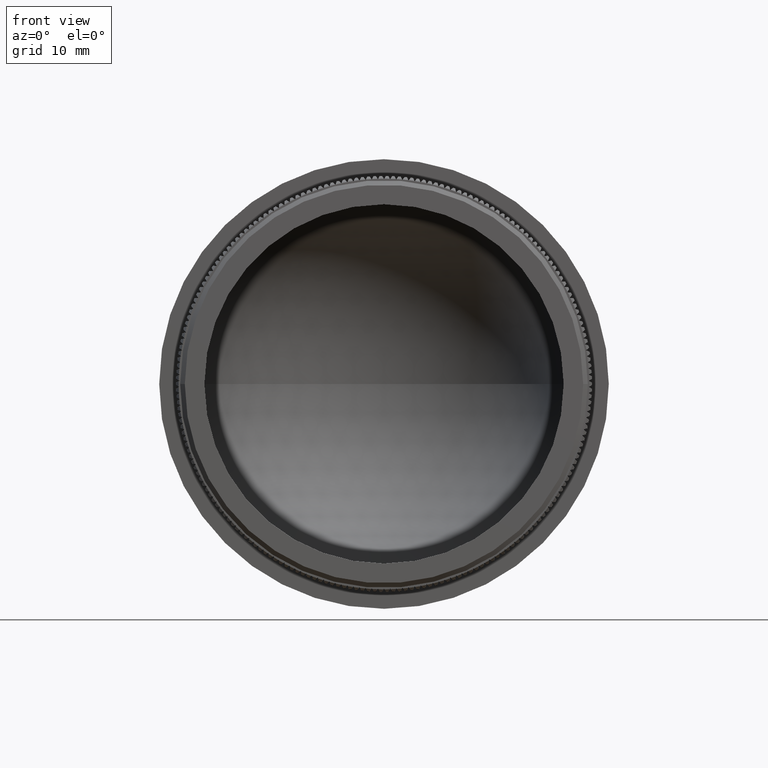
[diagram: clean part render]
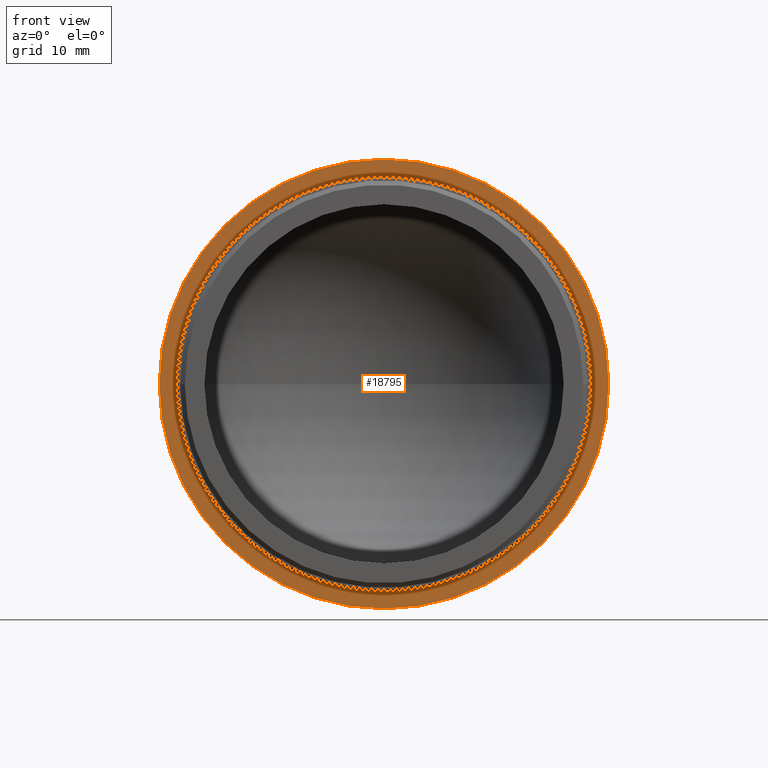
[diagram: same view with one face highlighted and labeled with its STEP entity id]
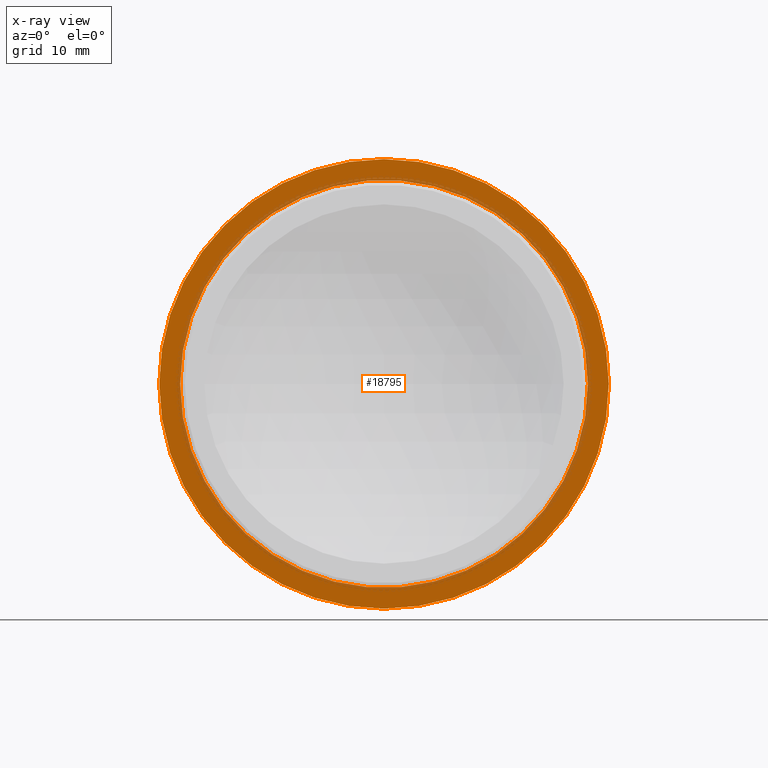
[diagram: x-ray of the same camera — body ghosted, the highlighted face saturated]
A machine part, front view. The second image highlights one B-rep face of the part: STEP entity #18795.
The next image is the same camera in x-ray: the body ghosted, the highlighted face saturated — about 13% of this face is hidden behind the body in this view.
In plain terms, the highlighted planar face has unit normal (-0, -1, 0).
Its self-contained STEP definition (entity closure, byte-faithful):
#58 = CARTESIAN_POINT ( 'NONE',  ( -3.187359955546916400E-014, 12.20000000000003700, 0.0000000000000000000 ) ) ;
#657 = ORIENTED_EDGE ( 'NONE', *, *, #10568, .T. ) ;
#1051 = EDGE_LOOP ( 'NONE', ( #657, #19886 ) ) ;
#1510 = AXIS2_PLACEMENT_3D ( 'NONE', #29771, #29637, #20395 ) ;
#1619 = DIRECTION ( 'NONE',  ( 1.000000000000000000, -1.388827867340707400E-015, 0.0000000000000000000 ) ) ;
#2032 = CARTESIAN_POINT ( 'NONE',  ( 24.14999999999999500, 12.19999999999999900, 0.0000000000000000000 ) ) ;
#2166 = DIRECTION ( 'NONE',  ( -1.388827867340707400E-015, -1.000000000000000000, 0.0000000000000000000 ) ) ;
#2226 = CIRCLE ( 'NONE', #1510, 21.90000000000003100 ) ;
#3218 = ORIENTED_EDGE ( 'NONE', *, *, #10048, .F. ) ;
#3592 = DIRECTION ( 'NONE',  ( 1.000000000000000000, -1.425800117241209200E-015, 0.0000000000000000000 ) ) ;
#3713 = CARTESIAN_POINT ( 'NONE',  ( -3.187359955546916400E-014, 12.20000000000003700, 0.0000000000000000000 ) ) ;
#3897 = DIRECTION ( 'NONE',  ( 1.000000000000000000, -1.364792796834753500E-015, 0.0000000000000000000 ) ) ;
#6409 = FACE_BOUND ( 'NONE', #37133, .T. ) ;
#6861 = FACE_OUTER_BOUND ( 'NONE', #1051, .T. ) ;
#8160 = VERTEX_POINT ( 'NONE', #34861 ) ;
#8374 = AXIS2_PLACEMENT_3D ( 'NONE', #3713, #32072, #19681 ) ;
#10048 = EDGE_CURVE ( 'NONE', #35921, #32361, #2226, .T. ) ;
#10063 = CIRCLE ( 'NONE', #8374, 24.15000000000002700 ) ;
#10464 = CARTESIAN_POINT ( 'NONE',  ( -24.15000000000005500, 12.20000000000007000, 2.957522019940861500E-015 ) ) ;
#10568 = EDGE_CURVE ( 'NONE', #8160, #26960, #10063, .T. ) ;
#11361 = CIRCLE ( 'NONE', #29588, 24.15000000000002700 ) ;
#18759 = CARTESIAN_POINT ( 'NONE',  ( 21.89999999999999900, 12.20000000000000300, 0.0000000000000000000 ) ) ;
#18795 = ADVANCED_FACE ( 'NONE', ( #6861, #6409 ), #33312, .T. ) ;
#18931 = DIRECTION ( 'NONE',  ( -1.388827867340707400E-015, -1.000000000000000000, -0.0000000000000000000 ) ) ;
#19508 = EDGE_CURVE ( 'NONE', #32361, #35921, #25613, .T. ) ;
#19681 = DIRECTION ( 'NONE',  ( 1.000000000000000000, -1.364792796834753500E-015, 0.0000000000000000000 ) ) ;
#19688 = DIRECTION ( 'NONE',  ( -1.388827867340707400E-015, -1.000000000000000000, -0.0000000000000000000 ) ) ;
#19886 = ORIENTED_EDGE ( 'NONE', *, *, #34239, .T. ) ;
#20046 = ORIENTED_EDGE ( 'NONE', *, *, #19508, .F. ) ;
#20395 = DIRECTION ( 'NONE',  ( 1.000000000000000000, -1.425800117241209200E-015, 0.0000000000000000000 ) ) ;
#24162 = AXIS2_PLACEMENT_3D ( 'NONE', #2032, #2166, #1619 ) ;
#25613 = CIRCLE ( 'NONE', #26804, 21.90000000000003100 ) ;
#26804 = AXIS2_PLACEMENT_3D ( 'NONE', #29200, #19688, #3592 ) ;
#26960 = VERTEX_POINT ( 'NONE', #10464 ) ;
#29200 = CARTESIAN_POINT ( 'NONE',  ( -3.187359955546917100E-014, 12.20000000000003300, 0.0000000000000000000 ) ) ;
#29588 = AXIS2_PLACEMENT_3D ( 'NONE', #58, #18931, #3897 ) ;
#29637 = DIRECTION ( 'NONE',  ( -1.388827867340707400E-015, -1.000000000000000000, -0.0000000000000000000 ) ) ;
#29771 = CARTESIAN_POINT ( 'NONE',  ( -3.187359955546917100E-014, 12.20000000000003300, 0.0000000000000000000 ) ) ;
#32072 = DIRECTION ( 'NONE',  ( -1.388827867340707400E-015, -1.000000000000000000, -0.0000000000000000000 ) ) ;
#32361 = VERTEX_POINT ( 'NONE', #37955 ) ;
#33312 = PLANE ( 'NONE',  #24162 ) ;
#34239 = EDGE_CURVE ( 'NONE', #26960, #8160, #11361, .T. ) ;
#34861 = CARTESIAN_POINT ( 'NONE',  ( 24.14999999999999500, 12.20000000000000500, 0.0000000000000000000 ) ) ;
#35921 = VERTEX_POINT ( 'NONE', #18759 ) ;
#37133 = EDGE_LOOP ( 'NONE', ( #3218, #20046 ) ) ;
#37955 = CARTESIAN_POINT ( 'NONE',  ( -21.90000000000006300, 12.20000000000006500, 2.681976490132707400E-015 ) ) ;